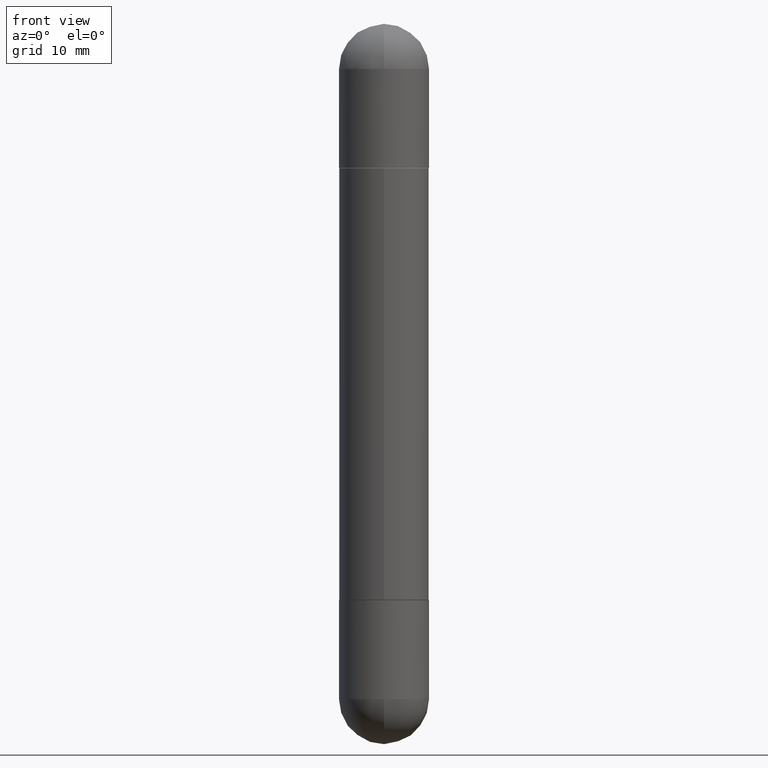
[diagram: clean part render]
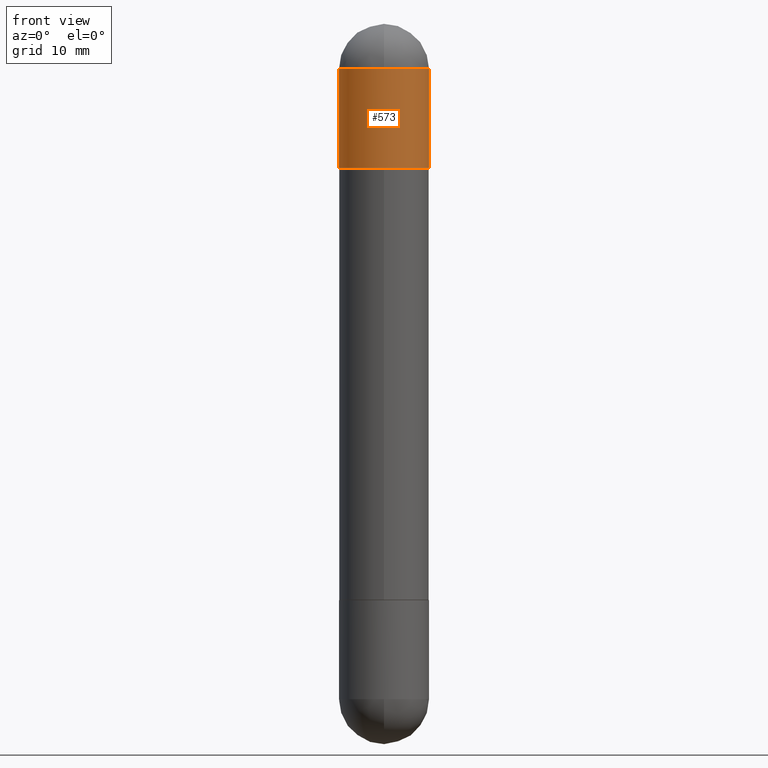
[diagram: same view with one face highlighted and labeled with its STEP entity id]
A machine part, front view. The second image highlights one B-rep face of the part: STEP entity #573.
In plain terms, the highlighted cylindrical surface (partial cylindrical patch) has radius 3.9688 mm, axis along (-0, 0, -1).
Its self-contained STEP definition (entity closure, byte-faithful):
#9 = DIRECTION ( 'NONE',  ( 1.000000000000000000, -6.982962677686269077E-15, 0.000000000000000000 ) ) ;
#58 = CYLINDRICAL_SURFACE ( 'NONE', #700, 0.1562500000000000000 ) ;
#63 = EDGE_CURVE ( 'NONE', #545, #817, #458, .T. ) ;
#68 = FACE_OUTER_BOUND ( 'NONE', #89, .T. ) ;
#81 = VECTOR ( 'NONE', #575, 39.37007874015748143 ) ;
#89 = EDGE_LOOP ( 'NONE', ( #100, #676, #239, #385, #431 ) ) ;
#100 = ORIENTED_EDGE ( 'NONE', *, *, #223, .F. ) ;
#112 = CARTESIAN_POINT ( 'NONE',  ( -0.1562500000000000000, 1.071952812151801807E-15, -2.500000000000000444 ) ) ;
#147 = AXIS2_PLACEMENT_3D ( 'NONE', #205, #391, #9 ) ;
#150 = LINE ( 'NONE', #656, #81 ) ;
#205 = CARTESIAN_POINT ( 'NONE',  ( 4.890937612370273194E-29, -6.982962677686291165E-15, -0.5000000000000006661 ) ) ;
#223 = EDGE_CURVE ( 'NONE', #694, #816, #719, .T. ) ;
#233 = LINE ( 'NONE', #112, #778 ) ;
#239 = ORIENTED_EDGE ( 'NONE', *, *, #63, .T. ) ;
#268 = DIRECTION ( 'NONE',  ( 1.000000000000000000, -6.982962677686266711E-15, 0.000000000000000000 ) ) ;
#285 = DIRECTION ( 'NONE',  ( 2.445468806185136597E-29, -3.491481338843145583E-15, 1.000000000000000000 ) ) ;
#291 = CARTESIAN_POINT ( 'NONE',  ( 0.1562500000000000000, -8.674148951188436448E-15, -0.1562500000000005551 ) ) ;
#310 = DIRECTION ( 'NONE',  ( -2.445468806185136597E-29, 3.491481338843145583E-15, -1.000000000000000000 ) ) ;
#324 = AXIS2_PLACEMENT_3D ( 'NONE', #711, #285, #644 ) ;
#361 = DIRECTION ( 'NONE',  ( -2.445468806185136877E-29, 3.491481338843145188E-15, -1.000000000000000000 ) ) ;
#362 = EDGE_CURVE ( 'NONE', #475, #817, #150, .T. ) ;
#365 = CIRCLE ( 'NONE', #324, 0.1562500000000000000 ) ;
#385 = ORIENTED_EDGE ( 'NONE', *, *, #362, .F. ) ;
#386 = CARTESIAN_POINT ( 'NONE',  ( 0.000000000000000000, 0.000000000000000000, -2.500000000000000444 ) ) ;
#391 = DIRECTION ( 'NONE',  ( 2.445468806185136597E-29, -3.491481338843145583E-15, 1.000000000000000000 ) ) ;
#431 = ORIENTED_EDGE ( 'NONE', *, *, #761, .F. ) ;
#441 = CARTESIAN_POINT ( 'NONE',  ( -0.1562500000000000000, -6.511108220648155468E-15, -0.5000000000000006661 ) ) ;
#458 = CIRCLE ( 'NONE', #147, 0.1562500000000000000 ) ;
#469 = DIRECTION ( 'NONE',  ( 1.000000000000000000, -6.982962677686262766E-15, 0.000000000000000000 ) ) ;
#475 = VERTEX_POINT ( 'NONE', #291 ) ;
#529 = CARTESIAN_POINT ( 'NONE',  ( 5.731567514496413899E-29, -8.183159387913622595E-15, -0.1562500000000005551 ) ) ;
#535 = EDGE_CURVE ( 'NONE', #694, #545, #233, .T. ) ;
#545 = VERTEX_POINT ( 'NONE', #441 ) ;
#573 = ADVANCED_FACE ( 'NONE', ( #68 ), #58, .T. ) ;
#575 = DIRECTION ( 'NONE',  ( -2.445468806185136877E-29, 3.491481338843145188E-15, -1.000000000000000000 ) ) ;
#644 = DIRECTION ( 'NONE',  ( 1.000000000000000000, -6.982962677686262766E-15, 0.000000000000000000 ) ) ;
#647 = DIRECTION ( 'NONE',  ( 2.445468806185136597E-29, -3.491481338843145583E-15, 1.000000000000000000 ) ) ;
#649 = CARTESIAN_POINT ( 'NONE',  ( 0.1562500000000000000, -8.074050596074770339E-15, -0.5000000000000006661 ) ) ;
#653 = CARTESIAN_POINT ( 'NONE',  ( -1.071952812151746981E-15, -0.1562500000000085487, -0.1562500000000011102 ) ) ;
#656 = CARTESIAN_POINT ( 'NONE',  ( 0.1562500000000000000, -1.091087918388479174E-15, -2.500000000000000444 ) ) ;
#676 = ORIENTED_EDGE ( 'NONE', *, *, #535, .T. ) ;
#694 = VERTEX_POINT ( 'NONE', #776 ) ;
#700 = AXIS2_PLACEMENT_3D ( 'NONE', #386, #310, #268 ) ;
#704 = AXIS2_PLACEMENT_3D ( 'NONE', #529, #647, #469 ) ;
#711 = CARTESIAN_POINT ( 'NONE',  ( 5.731567514496413899E-29, -8.183159387913622595E-15, -0.1562500000000005551 ) ) ;
#719 = CIRCLE ( 'NONE', #704, 0.1562500000000000000 ) ;
#761 = EDGE_CURVE ( 'NONE', #816, #475, #365, .T. ) ;
#776 = CARTESIAN_POINT ( 'NONE',  ( -0.1562500000000000000, -6.511108220648156257E-15, -0.1562500000000005551 ) ) ;
#778 = VECTOR ( 'NONE', #361, 39.37007874015748143 ) ;
#816 = VERTEX_POINT ( 'NONE', #653 ) ;
#817 = VERTEX_POINT ( 'NONE', #649 ) ;